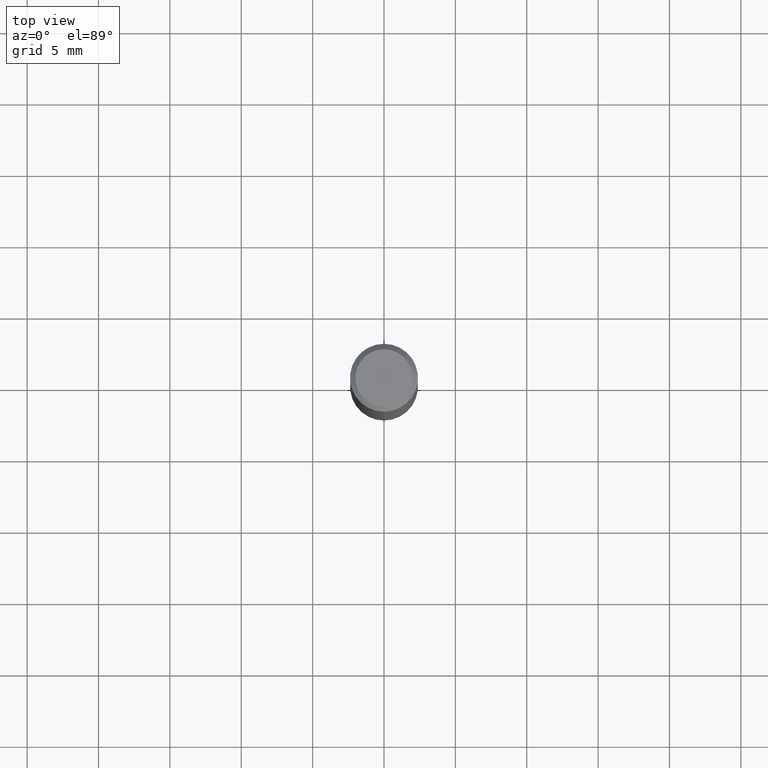
[diagram: clean part render]
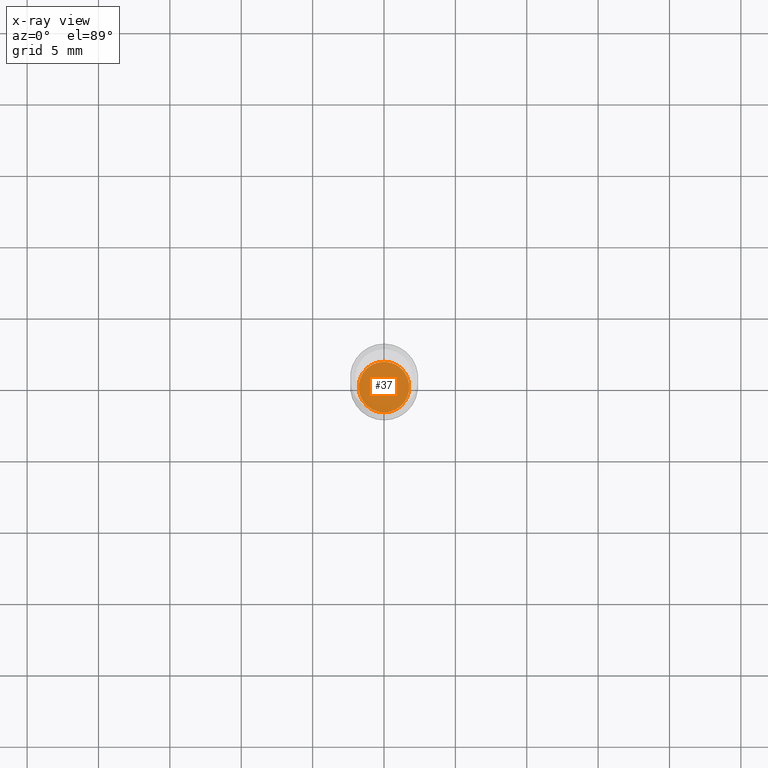
[diagram: x-ray — body ghosted, one internal face saturated and labeled with its STEP entity id]
A machine part, top view, then the same camera in x-ray: the body is ghosted and one INTERNAL B-rep face — a face not visible from any outside direction — is saturated and labeled: STEP entity #37.
In plain terms, the highlighted planar face has unit normal (-0, 0, 1).
Its self-contained STEP definition (entity closure, byte-faithful):
#9 = AXIS2_PLACEMENT_3D ( 'NONE', #28, #25, #344 ) ;
#21 = DIRECTION ( 'NONE',  ( -6.982962677686265922E-15, -1.000000000000000000, 3.492120384654201603E-15 ) ) ;
#25 = DIRECTION ( 'NONE',  ( -2.445022562880343100E-29, 3.492120384654201603E-15, 1.000000000000000000 ) ) ;
#28 = CARTESIAN_POINT ( 'NONE',  ( 3.667533844320514090E-29, -5.238180576981300827E-15, -1.499999999999999778 ) ) ;
#30 = EDGE_CURVE ( 'NONE', #321, #491, #51, .T. ) ;
#37 = ADVANCED_FACE ( 'NONE', ( #389 ), #357, .F. ) ;
#40 = AXIS2_PLACEMENT_3D ( 'NONE', #111, #387, #390 ) ;
#51 = CIRCLE ( 'NONE', #9, 0.06980000000000005644 ) ;
#111 = CARTESIAN_POINT ( 'NONE',  ( 3.667533844320514090E-29, -5.238180576981300827E-15, -1.499999999999999778 ) ) ;
#131 = DIRECTION ( 'NONE',  ( -2.445022562880342820E-29, 3.492120384654201603E-15, 1.000000000000000000 ) ) ;
#285 = EDGE_CURVE ( 'NONE', #491, #321, #466, .T. ) ;
#321 = VERTEX_POINT ( 'NONE', #429 ) ;
#324 = ORIENTED_EDGE ( 'NONE', *, *, #30, .F. ) ;
#328 = ORIENTED_EDGE ( 'NONE', *, *, #285, .F. ) ;
#344 = DIRECTION ( 'NONE',  ( -6.982962677686265922E-15, -1.000000000000000000, 3.913822340493210566E-15 ) ) ;
#357 = PLANE ( 'NONE',  #391 ) ;
#365 = CARTESIAN_POINT ( 'NONE',  ( 3.667533844320514090E-29, -5.238180576981300827E-15, -1.499999999999999778 ) ) ;
#387 = DIRECTION ( 'NONE',  ( -2.445022562880343100E-29, 3.492120384654201603E-15, 1.000000000000000000 ) ) ;
#389 = FACE_OUTER_BOUND ( 'NONE', #408, .T. ) ;
#390 = DIRECTION ( 'NONE',  ( -6.982962677686265922E-15, -1.000000000000000000, 3.913822340493210566E-15 ) ) ;
#391 = AXIS2_PLACEMENT_3D ( 'NONE', #365, #131, #21 ) ;
#395 = CARTESIAN_POINT ( 'NONE',  ( -4.874107949024650610E-16, -0.06980000000000530225, -1.499999999999999556 ) ) ;
#408 = EDGE_LOOP ( 'NONE', ( #328, #324 ) ) ;
#429 = CARTESIAN_POINT ( 'NONE',  ( 4.977351863999869690E-16, 0.06979999999999481064, -1.500000000000000222 ) ) ;
#466 = CIRCLE ( 'NONE', #40, 0.06980000000000005644 ) ;
#491 = VERTEX_POINT ( 'NONE', #395 ) ;